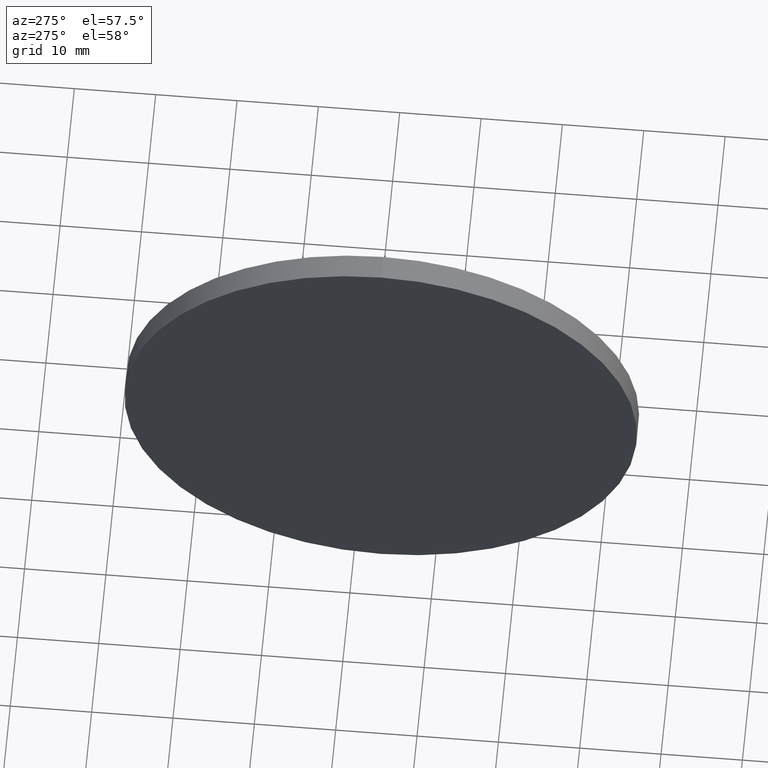
[diagram: clean part render]
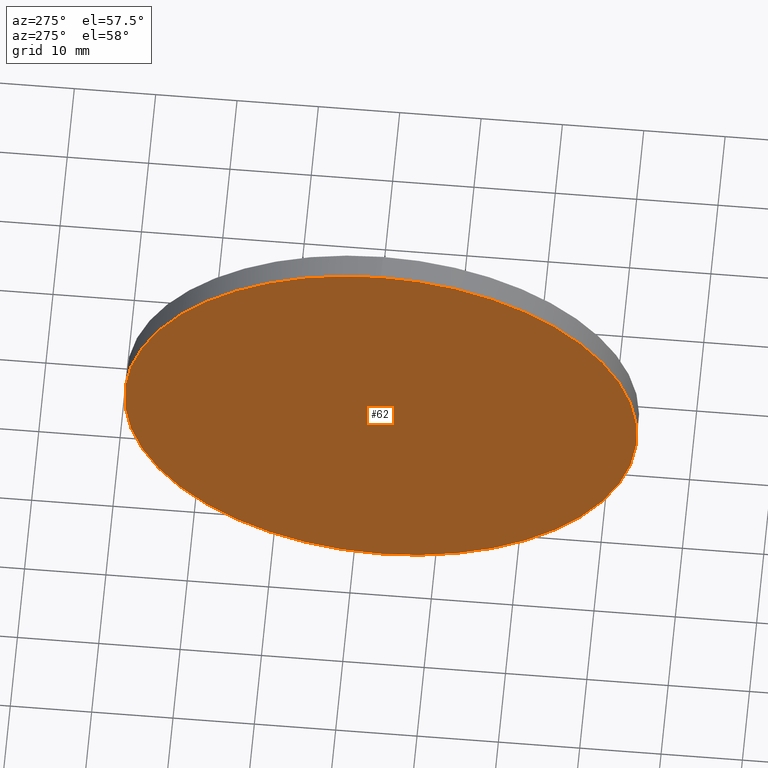
[diagram: same view with one face highlighted and labeled with its STEP entity id]
A machine part, auxiliary view. The second image highlights one B-rep face of the part: STEP entity #62.
In plain terms, the highlighted planar face has unit normal (1, 0, 0).
Its self-contained STEP definition (entity closure, byte-faithful):
#4 = CIRCLE ( 'NONE', #106, 31.50000000000001400 ) ;
#8 = DIRECTION ( 'NONE',  ( -1.000000000000000000, -0.0000000000000000000, -0.0000000000000000000 ) ) ;
#17 = CARTESIAN_POINT ( 'NONE',  ( 405.1110174173326200, 96.66232867724565400, 31.50000000000001400 ) ) ;
#19 = FACE_OUTER_BOUND ( 'NONE', #105, .T. ) ;
#22 = CARTESIAN_POINT ( 'NONE',  ( 405.1110174173326200, 96.66232867724565400, 0.0000000000000000000 ) ) ;
#23 = DIRECTION ( 'NONE',  ( 0.0000000000000000000, 0.0000000000000000000, -1.000000000000000000 ) ) ;
#37 = DIRECTION ( 'NONE',  ( 1.000000000000000000, 0.0000000000000000000, 0.0000000000000000000 ) ) ;
#51 = VERTEX_POINT ( 'NONE', #17 ) ;
#57 = CARTESIAN_POINT ( 'NONE',  ( 405.1110174173326200, 96.66232867724565400, 0.0000000000000000000 ) ) ;
#59 = CIRCLE ( 'NONE', #100, 31.50000000000001400 ) ;
#62 = ADVANCED_FACE ( 'NONE', ( #19 ), #170, .F. ) ;
#70 = VERTEX_POINT ( 'NONE', #151 ) ;
#78 = AXIS2_PLACEMENT_3D ( 'NONE', #57, #37, #23 ) ;
#82 = DIRECTION ( 'NONE',  ( 0.0000000000000000000, 0.0000000000000000000, 1.000000000000000000 ) ) ;
#90 = EDGE_CURVE ( 'NONE', #70, #51, #59, .T. ) ;
#97 = CARTESIAN_POINT ( 'NONE',  ( 405.1110174173326200, 96.66232867724565400, 0.0000000000000000000 ) ) ;
#100 = AXIS2_PLACEMENT_3D ( 'NONE', #22, #176, #82 ) ;
#105 = EDGE_LOOP ( 'NONE', ( #185, #161 ) ) ;
#106 = AXIS2_PLACEMENT_3D ( 'NONE', #97, #8, #163 ) ;
#151 = CARTESIAN_POINT ( 'NONE',  ( 405.1110174173326200, 96.66232867724565400, -31.50000000000001400 ) ) ;
#156 = EDGE_CURVE ( 'NONE', #51, #70, #4, .T. ) ;
#161 = ORIENTED_EDGE ( 'NONE', *, *, #90, .T. ) ;
#163 = DIRECTION ( 'NONE',  ( 0.0000000000000000000, 0.0000000000000000000, 1.000000000000000000 ) ) ;
#170 = PLANE ( 'NONE',  #78 ) ;
#176 = DIRECTION ( 'NONE',  ( -1.000000000000000000, -0.0000000000000000000, -0.0000000000000000000 ) ) ;
#185 = ORIENTED_EDGE ( 'NONE', *, *, #156, .T. ) ;